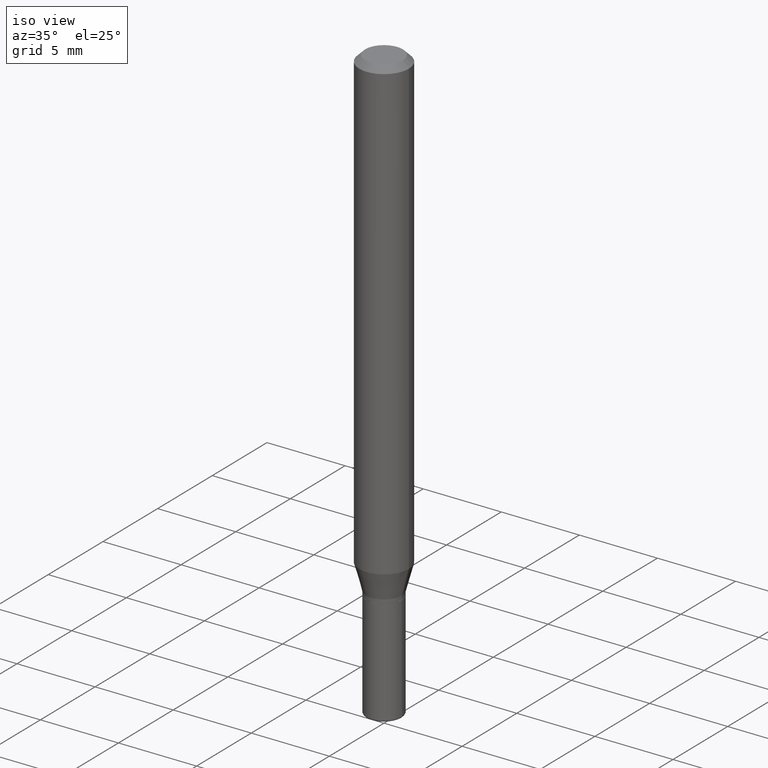
[diagram: clean part render]
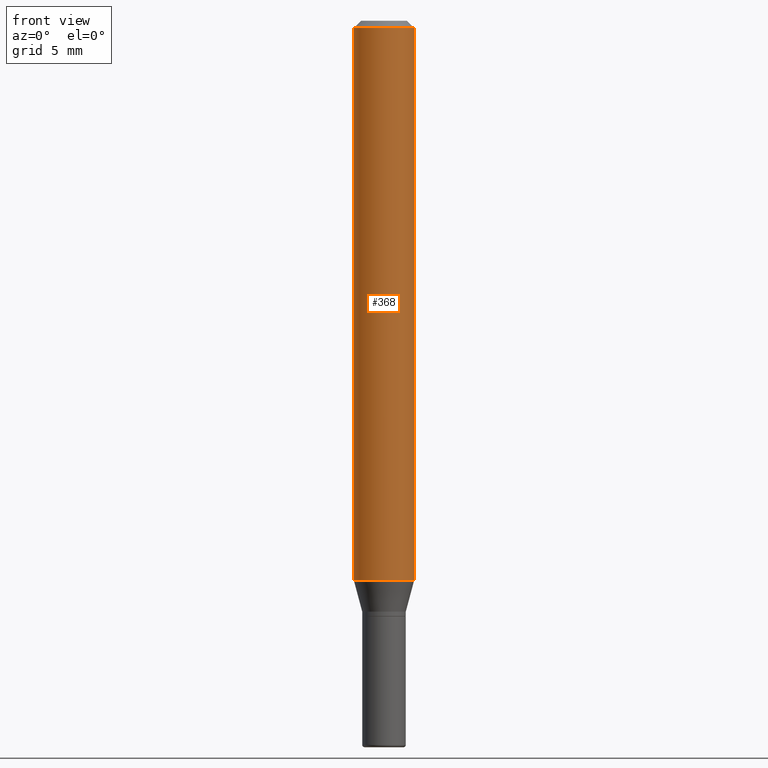
[diagram: tour spotlight — one face highlighted and labeled with its STEP entity id]
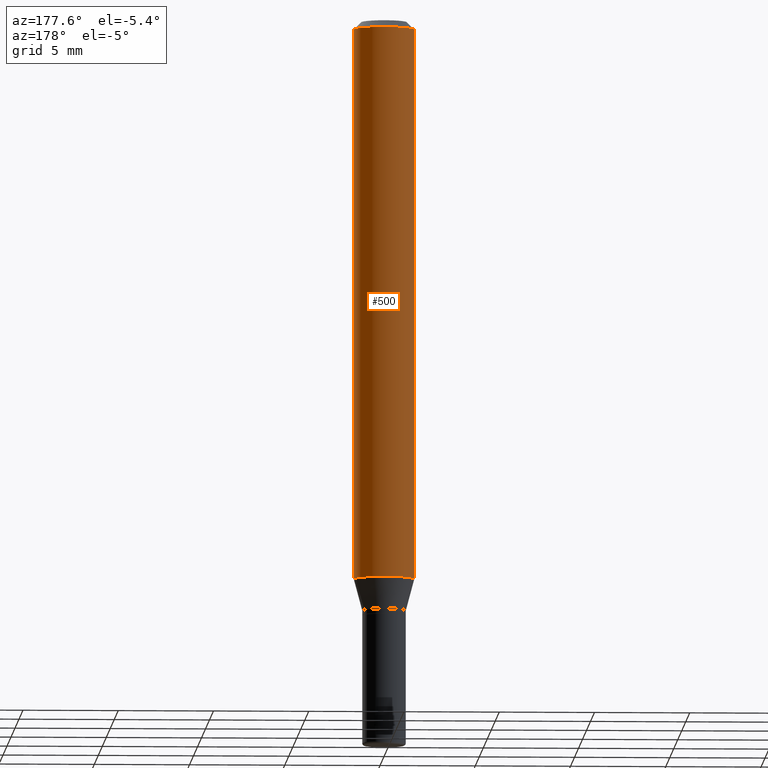
[diagram: tour spotlight — one face highlighted and labeled with its STEP entity id]
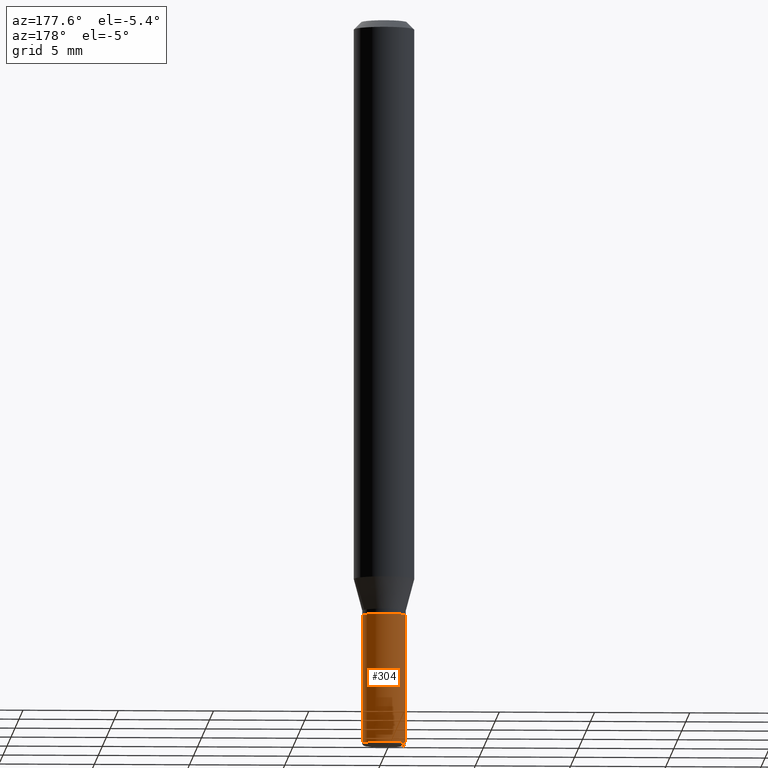
[diagram: tour spotlight — one face highlighted and labeled with its STEP entity id]
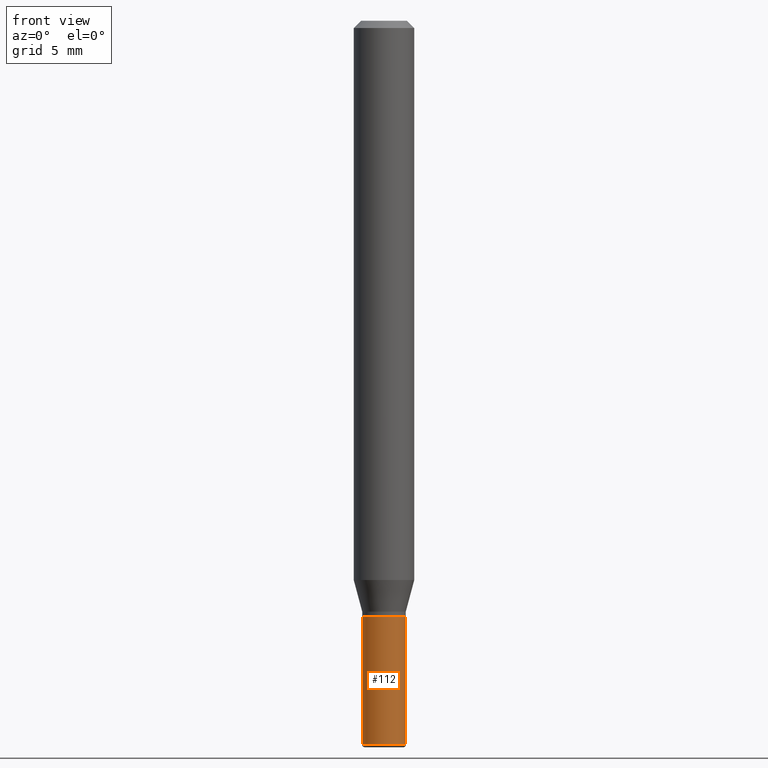
[diagram: tour spotlight — one face highlighted and labeled with its STEP entity id]
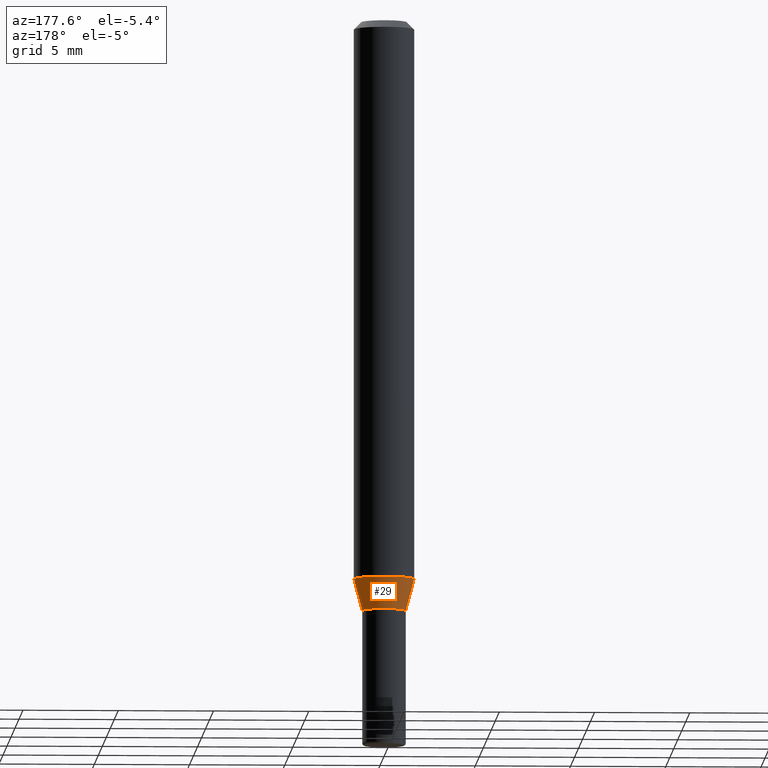
[diagram: tour spotlight — one face highlighted and labeled with its STEP entity id]
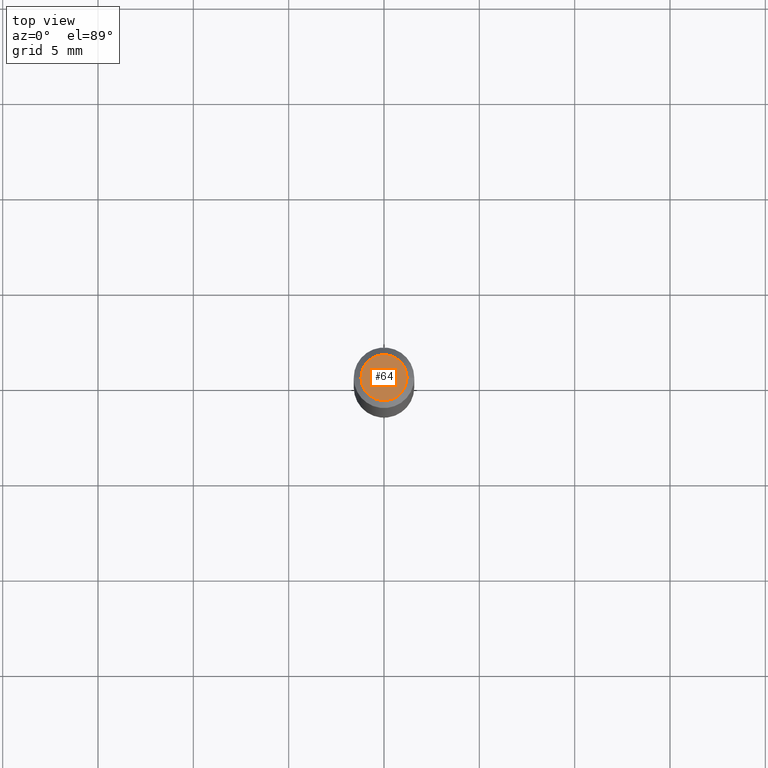
[diagram: tour spotlight — one face highlighted and labeled with its STEP entity id]
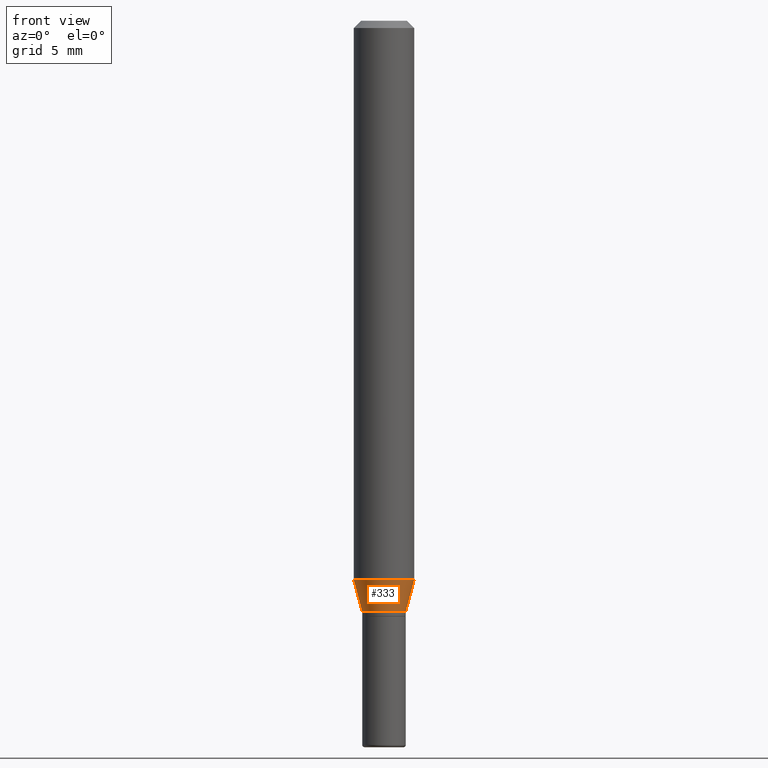
[diagram: tour spotlight — one face highlighted and labeled with its STEP entity id]
A machine part: a face-by-face anatomy tour. The part has 18 B-rep faces; the first image is the clean iso view, then the 7 largest visible faces are spotlighted one at a time (largest first), each with its STEP entity span.

Face 1 — front view, entity #368. In plain terms, the highlighted cylindrical surface (edge-blend (fillet) strip) has radius 1.5875 mm, axis along (-0, 0, 1).
Definition (entity closure, byte-faithful):
#11 = ORIENTED_EDGE ( 'NONE', *, *, #277, .F. ) ;
#14 = CARTESIAN_POINT ( 'NONE',  ( -0.06250000000000000000, -3.587486272909351485E-15, -1.154689110867544111 ) ) ;
#20 = DIRECTION ( 'NONE',  ( 1.000000000000000000, -6.982962677686266711E-15, 0.000000000000000000 ) ) ;
#47 = CARTESIAN_POINT ( 'NONE',  ( 2.823756201468229950E-29, -4.031575482759414101E-15, -1.154689110867544111 ) ) ;
#57 = DIRECTION ( 'NONE',  ( 1.000000000000000000, -6.982962677686266711E-15, 4.876176775795935793E-29 ) ) ;
#91 = CARTESIAN_POINT ( 'NONE',  ( 3.668203209277632395E-31, -5.237222008264614861E-17, -0.01499999999999970281 ) ) ;
#95 = VERTEX_POINT ( 'NONE', #117 ) ;
#107 = DIRECTION ( 'NONE',  ( -2.445468806185136877E-29, 3.491481338843145188E-15, 1.000000000000000000 ) ) ;
#108 = VECTOR ( 'NONE', #351, 39.37007874015748143 ) ;
#117 = CARTESIAN_POINT ( 'NONE',  ( -0.06250000000000000000, -1.597884641570967382E-15, -0.01499999999999970281 ) ) ;
#144 = DIRECTION ( 'NONE',  ( -2.445468806185136597E-29, 3.491481338843145583E-15, 1.000000000000000000 ) ) ;
#150 = AXIS2_PLACEMENT_3D ( 'NONE', #47, #295, #369 ) ;
#154 = ORIENTED_EDGE ( 'NONE', *, *, #227, .F. ) ;
#159 = ORIENTED_EDGE ( 'NONE', *, *, #388, .T. ) ;
#184 = AXIS2_PLACEMENT_3D ( 'NONE', #91, #456, #20 ) ;
#189 = CARTESIAN_POINT ( 'NONE',  ( 0.06250000000000000000, -4.468010650114805770E-15, -1.154689110867544111 ) ) ;
#210 = CIRCLE ( 'NONE', #150, 0.06250000000000000000 ) ;
#212 = EDGE_CURVE ( 'NONE', #393, #352, #486, .T. ) ;
#220 = VERTEX_POINT ( 'NONE', #14 ) ;
#227 = EDGE_CURVE ( 'NONE', #95, #352, #404, .T. ) ;
#277 = EDGE_CURVE ( 'NONE', #220, #95, #360, .T. ) ;
#287 = CARTESIAN_POINT ( 'NONE',  ( 0.06250000000000000000, -4.888073874380378612E-16, -0.01499999999999970281 ) ) ;
#295 = DIRECTION ( 'NONE',  ( -2.445468806185136597E-29, 3.491481338843145583E-15, 1.000000000000000000 ) ) ;
#351 = DIRECTION ( 'NONE',  ( -2.445468806185136877E-29, 3.491481338843145188E-15, 1.000000000000000000 ) ) ;
#352 = VERTEX_POINT ( 'NONE', #287 ) ;
#360 = LINE ( 'NONE', #503, #480 ) ;
#368 = ADVANCED_FACE ( 'NONE', ( #374 ), #418, .T. ) ;
#369 = DIRECTION ( 'NONE',  ( 1.000000000000000000, -6.982962677686262766E-15, 0.000000000000000000 ) ) ;
#374 = FACE_OUTER_BOUND ( 'NONE', #395, .T. ) ;
#376 = CARTESIAN_POINT ( 'NONE',  ( 0.000000000000000000, 0.000000000000000000, 0.000000000000000000 ) ) ;
#380 = AXIS2_PLACEMENT_3D ( 'NONE', #376, #144, #57 ) ;
#388 = EDGE_CURVE ( 'NONE', #220, #393, #210, .T. ) ;
#393 = VERTEX_POINT ( 'NONE', #189 ) ;
#395 = EDGE_LOOP ( 'NONE', ( #11, #159, #506, #154 ) ) ;
#404 = CIRCLE ( 'NONE', #184, 0.06250000000000000000 ) ;
#418 = CYLINDRICAL_SURFACE ( 'NONE', #380, 0.06250000000000000000 ) ;
#456 = DIRECTION ( 'NONE',  ( -2.445468806185136597E-29, 3.491481338843145583E-15, 1.000000000000000000 ) ) ;
#480 = VECTOR ( 'NONE', #107, 39.37007874015748143 ) ;
#486 = LINE ( 'NONE', #490, #108 ) ;
#490 = CARTESIAN_POINT ( 'NONE',  ( 0.06250000000000000000, -4.364351673553916694E-16, 3.047610484872459871E-30 ) ) ;
#503 = CARTESIAN_POINT ( 'NONE',  ( -0.06250000000000000000, 4.440892098500626162E-16, -3.074334431409316114E-30 ) ) ;
#506 = ORIENTED_EDGE ( 'NONE', *, *, #212, .T. ) ;

Face 2 — auxiliary view, entity #500. In plain terms, the highlighted cylindrical surface (edge-blend (fillet) strip) has radius 1.5875 mm, axis along (-0, 0, 1).
Definition (entity closure, byte-faithful):
#14 = CARTESIAN_POINT ( 'NONE',  ( -0.06250000000000000000, -3.587486272909351485E-15, -1.154689110867544111 ) ) ;
#16 = AXIS2_PLACEMENT_3D ( 'NONE', #365, #474, #284 ) ;
#53 = ORIENTED_EDGE ( 'NONE', *, *, #124, .F. ) ;
#77 = CARTESIAN_POINT ( 'NONE',  ( 3.668203209277632395E-31, -5.237222008264614861E-17, -0.01499999999999970281 ) ) ;
#84 = DIRECTION ( 'NONE',  ( 1.000000000000000000, -6.982962677686266711E-15, 4.876176775795935793E-29 ) ) ;
#92 = CIRCLE ( 'NONE', #209, 0.06250000000000000000 ) ;
#95 = VERTEX_POINT ( 'NONE', #117 ) ;
#107 = DIRECTION ( 'NONE',  ( -2.445468806185136877E-29, 3.491481338843145188E-15, 1.000000000000000000 ) ) ;
#108 = VECTOR ( 'NONE', #351, 39.37007874015748143 ) ;
#117 = CARTESIAN_POINT ( 'NONE',  ( -0.06250000000000000000, -1.597884641570967382E-15, -0.01499999999999970281 ) ) ;
#122 = CYLINDRICAL_SURFACE ( 'NONE', #158, 0.06250000000000000000 ) ;
#124 = EDGE_CURVE ( 'NONE', #352, #95, #92, .T. ) ;
#158 = AXIS2_PLACEMENT_3D ( 'NONE', #167, #286, #84 ) ;
#167 = CARTESIAN_POINT ( 'NONE',  ( 0.000000000000000000, 0.000000000000000000, 0.000000000000000000 ) ) ;
#189 = CARTESIAN_POINT ( 'NONE',  ( 0.06250000000000000000, -4.468010650114805770E-15, -1.154689110867544111 ) ) ;
#206 = DIRECTION ( 'NONE',  ( 1.000000000000000000, -6.982962677686266711E-15, 0.000000000000000000 ) ) ;
#209 = AXIS2_PLACEMENT_3D ( 'NONE', #77, #445, #206 ) ;
#212 = EDGE_CURVE ( 'NONE', #393, #352, #486, .T. ) ;
#220 = VERTEX_POINT ( 'NONE', #14 ) ;
#232 = EDGE_LOOP ( 'NONE', ( #302, #451, #53, #347 ) ) ;
#277 = EDGE_CURVE ( 'NONE', #220, #95, #360, .T. ) ;
#284 = DIRECTION ( 'NONE',  ( 1.000000000000000000, -6.982962677686262766E-15, 0.000000000000000000 ) ) ;
#286 = DIRECTION ( 'NONE',  ( -2.445468806185136597E-29, 3.491481338843145583E-15, 1.000000000000000000 ) ) ;
#287 = CARTESIAN_POINT ( 'NONE',  ( 0.06250000000000000000, -4.888073874380378612E-16, -0.01499999999999970281 ) ) ;
#302 = ORIENTED_EDGE ( 'NONE', *, *, #319, .T. ) ;
#319 = EDGE_CURVE ( 'NONE', #393, #220, #336, .T. ) ;
#336 = CIRCLE ( 'NONE', #16, 0.06250000000000000000 ) ;
#347 = ORIENTED_EDGE ( 'NONE', *, *, #212, .F. ) ;
#351 = DIRECTION ( 'NONE',  ( -2.445468806185136877E-29, 3.491481338843145188E-15, 1.000000000000000000 ) ) ;
#352 = VERTEX_POINT ( 'NONE', #287 ) ;
#360 = LINE ( 'NONE', #503, #480 ) ;
#362 = FACE_OUTER_BOUND ( 'NONE', #232, .T. ) ;
#365 = CARTESIAN_POINT ( 'NONE',  ( 2.823756201468229950E-29, -4.031575482759414101E-15, -1.154689110867544111 ) ) ;
#393 = VERTEX_POINT ( 'NONE', #189 ) ;
#445 = DIRECTION ( 'NONE',  ( -2.445468806185136597E-29, 3.491481338843145583E-15, 1.000000000000000000 ) ) ;
#451 = ORIENTED_EDGE ( 'NONE', *, *, #277, .T. ) ;
#474 = DIRECTION ( 'NONE',  ( -2.445468806185136597E-29, 3.491481338843145583E-15, 1.000000000000000000 ) ) ;
#480 = VECTOR ( 'NONE', #107, 39.37007874015748143 ) ;
#486 = LINE ( 'NONE', #490, #108 ) ;
#490 = CARTESIAN_POINT ( 'NONE',  ( 0.06250000000000000000, -4.364351673553916694E-16, 3.047610484872459871E-30 ) ) ;
#500 = ADVANCED_FACE ( 'NONE', ( #362 ), #122, .T. ) ;
#503 = CARTESIAN_POINT ( 'NONE',  ( -0.06250000000000000000, 4.440892098500626162E-16, -3.074334431409316114E-30 ) ) ;

Face 3 — auxiliary view, entity #304. In plain terms, the highlighted cylindrical surface (edge-blend (fillet) strip) has radius 1.143 mm, axis along (-0, 0, 1).
Definition (entity closure, byte-faithful):
#3 = CARTESIAN_POINT ( 'NONE',  ( 0.04499999999999994976, -3.142333204958816371E-16, 2.194279549108168164E-30 ) ) ;
#17 = EDGE_CURVE ( 'NONE', #485, #455, #176, .T. ) ;
#19 = VERTEX_POINT ( 'NONE', #389 ) ;
#22 = EDGE_LOOP ( 'NONE', ( #462, #235, #258, #105 ) ) ;
#37 = DIRECTION ( 'NONE',  ( 1.000000000000000000, -6.982962677686269077E-15, 0.000000000000000000 ) ) ;
#39 = CARTESIAN_POINT ( 'NONE',  ( 0.04499999999999990119, -5.533997922066385616E-15, -1.495000000000000329 ) ) ;
#72 = AXIS2_PLACEMENT_3D ( 'NONE', #199, #424, #234 ) ;
#80 = CARTESIAN_POINT ( 'NONE',  ( 3.007926631607718216E-29, -4.294522046777069173E-15, -1.230000000000000204 ) ) ;
#82 = DIRECTION ( 'NONE',  ( 1.000000000000000000, -6.982962677686266711E-15, 4.876176775795934672E-29 ) ) ;
#105 = ORIENTED_EDGE ( 'NONE', *, *, #137, .F. ) ;
#133 = CARTESIAN_POINT ( 'NONE',  ( 0.04499999999999999833, -4.608755367272951648E-15, -1.230000000000000204 ) ) ;
#137 = EDGE_CURVE ( 'NONE', #485, #252, #309, .T. ) ;
#169 = LINE ( 'NONE', #171, #405 ) ;
#171 = CARTESIAN_POINT ( 'NONE',  ( -0.04499999999999994976, 3.197442310920447267E-16, -2.213520790614704757E-30 ) ) ;
#173 = FACE_OUTER_BOUND ( 'NONE', #22, .T. ) ;
#174 = DIRECTION ( 'NONE',  ( -2.445468806185136877E-29, 3.491481338843145188E-15, 1.000000000000000000 ) ) ;
#176 = CIRCLE ( 'NONE', #72, 0.04499999999999990119 ) ;
#177 = AXIS2_PLACEMENT_3D ( 'NONE', #325, #478, #82 ) ;
#199 = CARTESIAN_POINT ( 'NONE',  ( 3.655975865246779683E-29, -5.219764601570503930E-15, -1.495000000000000329 ) ) ;
#204 = CARTESIAN_POINT ( 'NONE',  ( -0.04499999999999990119, -4.437399093081741973E-15, -1.495000000000000329 ) ) ;
#234 = DIRECTION ( 'NONE',  ( 1.000000000000000000, -6.982962677686261977E-15, 0.000000000000000000 ) ) ;
#235 = ORIENTED_EDGE ( 'NONE', *, *, #444, .T. ) ;
#242 = VECTOR ( 'NONE', #174, 39.37007874015748143 ) ;
#245 = DIRECTION ( 'NONE',  ( -2.445468806185136597E-29, 3.491481338843145583E-15, 1.000000000000000000 ) ) ;
#248 = CIRCLE ( 'NONE', #420, 0.04499999999999999833 ) ;
#252 = VERTEX_POINT ( 'NONE', #133 ) ;
#258 = ORIENTED_EDGE ( 'NONE', *, *, #329, .F. ) ;
#275 = DIRECTION ( 'NONE',  ( -2.445468806185136877E-29, 3.491481338843145188E-15, 1.000000000000000000 ) ) ;
#304 = ADVANCED_FACE ( 'NONE', ( #173 ), #334, .T. ) ;
#309 = LINE ( 'NONE', #3, #242 ) ;
#325 = CARTESIAN_POINT ( 'NONE',  ( 0.000000000000000000, 0.000000000000000000, 0.000000000000000000 ) ) ;
#329 = EDGE_CURVE ( 'NONE', #252, #19, #248, .T. ) ;
#334 = CYLINDRICAL_SURFACE ( 'NONE', #177, 0.04499999999999994976 ) ;
#389 = CARTESIAN_POINT ( 'NONE',  ( -0.04499999999999999833, -4.437399093081741973E-15, -1.230000000000000204 ) ) ;
#405 = VECTOR ( 'NONE', #275, 39.37007874015748143 ) ;
#420 = AXIS2_PLACEMENT_3D ( 'NONE', #80, #245, #37 ) ;
#424 = DIRECTION ( 'NONE',  ( -2.445468806185136597E-29, 3.491481338843145583E-15, 1.000000000000000000 ) ) ;
#444 = EDGE_CURVE ( 'NONE', #455, #19, #169, .T. ) ;
#455 = VERTEX_POINT ( 'NONE', #204 ) ;
#462 = ORIENTED_EDGE ( 'NONE', *, *, #17, .T. ) ;
#478 = DIRECTION ( 'NONE',  ( -2.445468806185136597E-29, 3.491481338843145583E-15, 1.000000000000000000 ) ) ;
#485 = VERTEX_POINT ( 'NONE', #39 ) ;

Face 4 — front view, entity #112. In plain terms, the highlighted cylindrical surface (edge-blend (fillet) strip) has radius 1.143 mm, axis along (-0, 0, 1).
Definition (entity closure, byte-faithful):
#3 = CARTESIAN_POINT ( 'NONE',  ( 0.04499999999999994976, -3.142333204958816371E-16, 2.194279549108168164E-30 ) ) ;
#19 = VERTEX_POINT ( 'NONE', #389 ) ;
#36 = DIRECTION ( 'NONE',  ( 1.000000000000000000, -6.982962677686261977E-15, 0.000000000000000000 ) ) ;
#38 = AXIS2_PLACEMENT_3D ( 'NONE', #400, #434, #88 ) ;
#39 = CARTESIAN_POINT ( 'NONE',  ( 0.04499999999999990119, -5.533997922066385616E-15, -1.495000000000000329 ) ) ;
#49 = ORIENTED_EDGE ( 'NONE', *, *, #482, .F. ) ;
#52 = ORIENTED_EDGE ( 'NONE', *, *, #438, .T. ) ;
#88 = DIRECTION ( 'NONE',  ( 1.000000000000000000, -6.982962677686266711E-15, 4.876176775795934672E-29 ) ) ;
#112 = ADVANCED_FACE ( 'NONE', ( #134 ), #294, .T. ) ;
#133 = CARTESIAN_POINT ( 'NONE',  ( 0.04499999999999999833, -4.608755367272951648E-15, -1.230000000000000204 ) ) ;
#134 = FACE_OUTER_BOUND ( 'NONE', #135, .T. ) ;
#135 = EDGE_LOOP ( 'NONE', ( #417, #52, #226, #49 ) ) ;
#137 = EDGE_CURVE ( 'NONE', #485, #252, #309, .T. ) ;
#169 = LINE ( 'NONE', #171, #405 ) ;
#171 = CARTESIAN_POINT ( 'NONE',  ( -0.04499999999999994976, 3.197442310920447267E-16, -2.213520790614704757E-30 ) ) ;
#174 = DIRECTION ( 'NONE',  ( -2.445468806185136877E-29, 3.491481338843145188E-15, 1.000000000000000000 ) ) ;
#202 = CARTESIAN_POINT ( 'NONE',  ( 3.655975865246779683E-29, -5.219764601570503930E-15, -1.495000000000000329 ) ) ;
#204 = CARTESIAN_POINT ( 'NONE',  ( -0.04499999999999990119, -4.437399093081741973E-15, -1.495000000000000329 ) ) ;
#226 = ORIENTED_EDGE ( 'NONE', *, *, #137, .T. ) ;
#242 = VECTOR ( 'NONE', #174, 39.37007874015748143 ) ;
#252 = VERTEX_POINT ( 'NONE', #133 ) ;
#264 = AXIS2_PLACEMENT_3D ( 'NONE', #367, #514, #475 ) ;
#275 = DIRECTION ( 'NONE',  ( -2.445468806185136877E-29, 3.491481338843145188E-15, 1.000000000000000000 ) ) ;
#294 = CYLINDRICAL_SURFACE ( 'NONE', #38, 0.04499999999999994976 ) ;
#309 = LINE ( 'NONE', #3, #242 ) ;
#321 = CIRCLE ( 'NONE', #264, 0.04499999999999999833 ) ;
#367 = CARTESIAN_POINT ( 'NONE',  ( 3.007926631607718216E-29, -4.294522046777069173E-15, -1.230000000000000204 ) ) ;
#389 = CARTESIAN_POINT ( 'NONE',  ( -0.04499999999999999833, -4.437399093081741973E-15, -1.230000000000000204 ) ) ;
#400 = CARTESIAN_POINT ( 'NONE',  ( 0.000000000000000000, 0.000000000000000000, 0.000000000000000000 ) ) ;
#405 = VECTOR ( 'NONE', #275, 39.37007874015748143 ) ;
#417 = ORIENTED_EDGE ( 'NONE', *, *, #444, .F. ) ;
#434 = DIRECTION ( 'NONE',  ( -2.445468806185136597E-29, 3.491481338843145583E-15, 1.000000000000000000 ) ) ;
#438 = EDGE_CURVE ( 'NONE', #455, #485, #501, .T. ) ;
#444 = EDGE_CURVE ( 'NONE', #455, #19, #169, .T. ) ;
#455 = VERTEX_POINT ( 'NONE', #204 ) ;
#471 = DIRECTION ( 'NONE',  ( -2.445468806185136597E-29, 3.491481338843145583E-15, 1.000000000000000000 ) ) ;
#475 = DIRECTION ( 'NONE',  ( 1.000000000000000000, -6.982962677686269077E-15, 0.000000000000000000 ) ) ;
#482 = EDGE_CURVE ( 'NONE', #19, #252, #321, .T. ) ;
#485 = VERTEX_POINT ( 'NONE', #39 ) ;
#492 = AXIS2_PLACEMENT_3D ( 'NONE', #202, #471, #36 ) ;
#501 = CIRCLE ( 'NONE', #492, 0.04499999999999990119 ) ;
#514 = DIRECTION ( 'NONE',  ( -2.445468806185136597E-29, 3.491481338843145583E-15, 1.000000000000000000 ) ) ;

Face 5 — auxiliary view, entity #29. In plain terms, the highlighted conical surface has half-angle 15 deg.
Definition (entity closure, byte-faithful):
#14 = CARTESIAN_POINT ( 'NONE',  ( -0.06250000000000000000, -3.587486272909351485E-15, -1.154689110867544111 ) ) ;
#16 = AXIS2_PLACEMENT_3D ( 'NONE', #365, #474, #284 ) ;
#24 = DIRECTION ( 'NONE',  ( -2.445468806185136597E-29, 3.491481338843145583E-15, 1.000000000000000000 ) ) ;
#29 = ADVANCED_FACE ( 'NONE', ( #320 ), #298, .T. ) ;
#46 = VECTOR ( 'NONE', #263, 39.37007874015748854 ) ;
#59 = CIRCLE ( 'NONE', #272, 0.04499999999999992895 ) ;
#61 = ORIENTED_EDGE ( 'NONE', *, *, #319, .F. ) ;
#65 = VERTEX_POINT ( 'NONE', #337 ) ;
#86 = EDGE_CURVE ( 'NONE', #466, #393, #289, .T. ) ;
#139 = AXIS2_PLACEMENT_3D ( 'NONE', #357, #24, #194 ) ;
#156 = ORIENTED_EDGE ( 'NONE', *, *, #170, .T. ) ;
#170 = EDGE_CURVE ( 'NONE', #65, #220, #452, .T. ) ;
#189 = CARTESIAN_POINT ( 'NONE',  ( 0.06250000000000000000, -4.468010650114805770E-15, -1.154689110867544111 ) ) ;
#194 = DIRECTION ( 'NONE',  ( 1.000000000000000000, -6.982962677686257244E-15, 0.000000000000000000 ) ) ;
#214 = DIRECTION ( 'NONE',  ( 1.000000000000000000, -6.982962677686257244E-15, 0.000000000000000000 ) ) ;
#220 = VERTEX_POINT ( 'NONE', #14 ) ;
#238 = ORIENTED_EDGE ( 'NONE', *, *, #86, .F. ) ;
#263 = DIRECTION ( 'NONE',  ( -0.2588190451025205729, 5.211531920934544731E-15, 0.9659258262890682012 ) ) ;
#272 = AXIS2_PLACEMENT_3D ( 'NONE', #513, #516, #214 ) ;
#284 = DIRECTION ( 'NONE',  ( 1.000000000000000000, -6.982962677686262766E-15, 0.000000000000000000 ) ) ;
#289 = LINE ( 'NONE', #442, #479 ) ;
#293 = EDGE_CURVE ( 'NONE', #466, #65, #59, .T. ) ;
#298 = CONICAL_SURFACE ( 'NONE', #139, 0.04499999999999992895, 0.2617993877991492968 ) ;
#317 = EDGE_LOOP ( 'NONE', ( #431, #156, #61, #238 ) ) ;
#319 = EDGE_CURVE ( 'NONE', #393, #220, #336, .T. ) ;
#320 = FACE_OUTER_BOUND ( 'NONE', #317, .T. ) ;
#336 = CIRCLE ( 'NONE', #16, 0.06250000000000000000 ) ;
#337 = CARTESIAN_POINT ( 'NONE',  ( -0.04499999999999992895, -3.763674637602971820E-15, -1.219999999999999751 ) ) ;
#357 = CARTESIAN_POINT ( 'NONE',  ( 2.983471943545866110E-29, -4.259607233388636735E-15, -1.219999999999999751 ) ) ;
#365 = CARTESIAN_POINT ( 'NONE',  ( 2.823756201468229950E-29, -4.031575482759414101E-15, -1.154689110867544111 ) ) ;
#383 = CARTESIAN_POINT ( 'NONE',  ( -0.04499999999999992895, -3.939863002296592156E-15, -1.219999999999999751 ) ) ;
#393 = VERTEX_POINT ( 'NONE', #189 ) ;
#431 = ORIENTED_EDGE ( 'NONE', *, *, #293, .T. ) ;
#442 = CARTESIAN_POINT ( 'NONE',  ( 0.04499999999999992895, -4.573840553884517633E-15, -1.219999999999999751 ) ) ;
#452 = LINE ( 'NONE', #383, #46 ) ;
#466 = VERTEX_POINT ( 'NONE', #517 ) ;
#469 = DIRECTION ( 'NONE',  ( 0.2588190451025205729, 1.565188264969627490E-15, 0.9659258262890682012 ) ) ;
#474 = DIRECTION ( 'NONE',  ( -2.445468806185136597E-29, 3.491481338843145583E-15, 1.000000000000000000 ) ) ;
#479 = VECTOR ( 'NONE', #469, 39.37007874015748854 ) ;
#513 = CARTESIAN_POINT ( 'NONE',  ( 2.983471943545866110E-29, -4.259607233388636735E-15, -1.219999999999999751 ) ) ;
#516 = DIRECTION ( 'NONE',  ( -2.445468806185136597E-29, 3.491481338843145583E-15, 1.000000000000000000 ) ) ;
#517 = CARTESIAN_POINT ( 'NONE',  ( 0.04499999999999992895, -4.573840553884517633E-15, -1.219999999999999751 ) ) ;

Face 6 — top view, entity #64. In plain terms, the highlighted planar face has unit normal (0, -0, -1).
Definition (entity closure, byte-faithful):
#6 = VERTEX_POINT ( 'NONE', #267 ) ;
#50 = DIRECTION ( 'NONE',  ( -2.445468806185136597E-29, 3.491481338843145583E-15, 1.000000000000000000 ) ) ;
#64 = ADVANCED_FACE ( 'NONE', ( #481 ), #161, .F. ) ;
#69 = ORIENTED_EDGE ( 'NONE', *, *, #205, .T. ) ;
#129 = CARTESIAN_POINT ( 'NONE',  ( 3.316907271900976589E-16, 0.04750000000000000749, -2.925296391183627249E-17 ) ) ;
#145 = CARTESIAN_POINT ( 'NONE',  ( -6.680649051745406845E-45, 9.538196290434862081E-31, 2.731847993664263218E-16 ) ) ;
#146 = VERTEX_POINT ( 'NONE', #187 ) ;
#161 = PLANE ( 'NONE',  #254 ) ;
#187 = CARTESIAN_POINT ( 'NONE',  ( -0.04750000000000000749, 3.578768372314221353E-16, 2.731847993664239060E-16 ) ) ;
#205 = EDGE_CURVE ( 'NONE', #146, #6, #345, .T. ) ;
#215 = DIRECTION ( 'NONE',  ( 2.438088387897960049E-29, -3.491481338843145188E-15, -1.000000000000000000 ) ) ;
#251 = DIRECTION ( 'NONE',  ( -2.445468806185136597E-29, 3.491481338843145583E-15, 1.000000000000000000 ) ) ;
#254 = AXIS2_PLACEMENT_3D ( 'NONE', #129, #215, #327 ) ;
#267 = CARTESIAN_POINT ( 'NONE',  ( 0.04750000000000000749, -4.035134999187568762E-16, 2.731847993664288856E-16 ) ) ;
#301 = CARTESIAN_POINT ( 'NONE',  ( -6.680649051745406845E-45, 9.538196290434862081E-31, 2.731847993664263218E-16 ) ) ;
#327 = DIRECTION ( 'NONE',  ( -1.000000000000000000, 6.982962677686265922E-15, -4.876176775795935793E-29 ) ) ;
#338 = DIRECTION ( 'NONE',  ( 1.000000000000000000, -6.982962677686266711E-15, 4.852736867747365086E-29 ) ) ;
#345 = CIRCLE ( 'NONE', #448, 0.04750000000000000749 ) ;
#366 = EDGE_CURVE ( 'NONE', #6, #146, #428, .T. ) ;
#410 = ORIENTED_EDGE ( 'NONE', *, *, #366, .T. ) ;
#411 = DIRECTION ( 'NONE',  ( 1.000000000000000000, -6.982962677686266711E-15, 4.852736867747365086E-29 ) ) ;
#428 = CIRCLE ( 'NONE', #510, 0.04750000000000000749 ) ;
#448 = AXIS2_PLACEMENT_3D ( 'NONE', #145, #50, #411 ) ;
#467 = EDGE_LOOP ( 'NONE', ( #69, #410 ) ) ;
#481 = FACE_OUTER_BOUND ( 'NONE', #467, .T. ) ;
#510 = AXIS2_PLACEMENT_3D ( 'NONE', #301, #251, #338 ) ;

Face 7 — front view, entity #333. In plain terms, the highlighted conical surface has half-angle 15 deg.
Definition (entity closure, byte-faithful):
#14 = CARTESIAN_POINT ( 'NONE',  ( -0.06250000000000000000, -3.587486272909351485E-15, -1.154689110867544111 ) ) ;
#41 = DIRECTION ( 'NONE',  ( 1.000000000000000000, -6.982962677686257244E-15, 0.000000000000000000 ) ) ;
#46 = VECTOR ( 'NONE', #263, 39.37007874015748854 ) ;
#47 = CARTESIAN_POINT ( 'NONE',  ( 2.823756201468229950E-29, -4.031575482759414101E-15, -1.154689110867544111 ) ) ;
#65 = VERTEX_POINT ( 'NONE', #337 ) ;
#76 = CONICAL_SURFACE ( 'NONE', #126, 0.04499999999999992895, 0.2617993877991492968 ) ;
#86 = EDGE_CURVE ( 'NONE', #466, #393, #289, .T. ) ;
#100 = ORIENTED_EDGE ( 'NONE', *, *, #170, .F. ) ;
#126 = AXIS2_PLACEMENT_3D ( 'NONE', #168, #476, #41 ) ;
#150 = AXIS2_PLACEMENT_3D ( 'NONE', #47, #295, #369 ) ;
#168 = CARTESIAN_POINT ( 'NONE',  ( 2.983471943545866110E-29, -4.259607233388636735E-15, -1.219999999999999751 ) ) ;
#170 = EDGE_CURVE ( 'NONE', #65, #220, #452, .T. ) ;
#189 = CARTESIAN_POINT ( 'NONE',  ( 0.06250000000000000000, -4.468010650114805770E-15, -1.154689110867544111 ) ) ;
#208 = FACE_OUTER_BOUND ( 'NONE', #217, .T. ) ;
#210 = CIRCLE ( 'NONE', #150, 0.06250000000000000000 ) ;
#217 = EDGE_LOOP ( 'NONE', ( #100, #446, #296, #421 ) ) ;
#220 = VERTEX_POINT ( 'NONE', #14 ) ;
#230 = EDGE_CURVE ( 'NONE', #65, #466, #465, .T. ) ;
#263 = DIRECTION ( 'NONE',  ( -0.2588190451025205729, 5.211531920934544731E-15, 0.9659258262890682012 ) ) ;
#289 = LINE ( 'NONE', #442, #479 ) ;
#295 = DIRECTION ( 'NONE',  ( -2.445468806185136597E-29, 3.491481338843145583E-15, 1.000000000000000000 ) ) ;
#296 = ORIENTED_EDGE ( 'NONE', *, *, #86, .T. ) ;
#333 = ADVANCED_FACE ( 'NONE', ( #208 ), #76, .T. ) ;
#337 = CARTESIAN_POINT ( 'NONE',  ( -0.04499999999999992895, -3.763674637602971820E-15, -1.219999999999999751 ) ) ;
#369 = DIRECTION ( 'NONE',  ( 1.000000000000000000, -6.982962677686262766E-15, 0.000000000000000000 ) ) ;
#383 = CARTESIAN_POINT ( 'NONE',  ( -0.04499999999999992895, -3.939863002296592156E-15, -1.219999999999999751 ) ) ;
#388 = EDGE_CURVE ( 'NONE', #220, #393, #210, .T. ) ;
#393 = VERTEX_POINT ( 'NONE', #189 ) ;
#415 = DIRECTION ( 'NONE',  ( 1.000000000000000000, -6.982962677686257244E-15, 0.000000000000000000 ) ) ;
#421 = ORIENTED_EDGE ( 'NONE', *, *, #388, .F. ) ;
#439 = AXIS2_PLACEMENT_3D ( 'NONE', #460, #498, #415 ) ;
#442 = CARTESIAN_POINT ( 'NONE',  ( 0.04499999999999992895, -4.573840553884517633E-15, -1.219999999999999751 ) ) ;
#446 = ORIENTED_EDGE ( 'NONE', *, *, #230, .T. ) ;
#452 = LINE ( 'NONE', #383, #46 ) ;
#460 = CARTESIAN_POINT ( 'NONE',  ( 2.983471943545866110E-29, -4.259607233388636735E-15, -1.219999999999999751 ) ) ;
#465 = CIRCLE ( 'NONE', #439, 0.04499999999999992895 ) ;
#466 = VERTEX_POINT ( 'NONE', #517 ) ;
#469 = DIRECTION ( 'NONE',  ( 0.2588190451025205729, 1.565188264969627490E-15, 0.9659258262890682012 ) ) ;
#476 = DIRECTION ( 'NONE',  ( -2.445468806185136597E-29, 3.491481338843145583E-15, 1.000000000000000000 ) ) ;
#479 = VECTOR ( 'NONE', #469, 39.37007874015748854 ) ;
#498 = DIRECTION ( 'NONE',  ( -2.445468806185136597E-29, 3.491481338843145583E-15, 1.000000000000000000 ) ) ;
#517 = CARTESIAN_POINT ( 'NONE',  ( 0.04499999999999992895, -4.573840553884517633E-15, -1.219999999999999751 ) ) ;